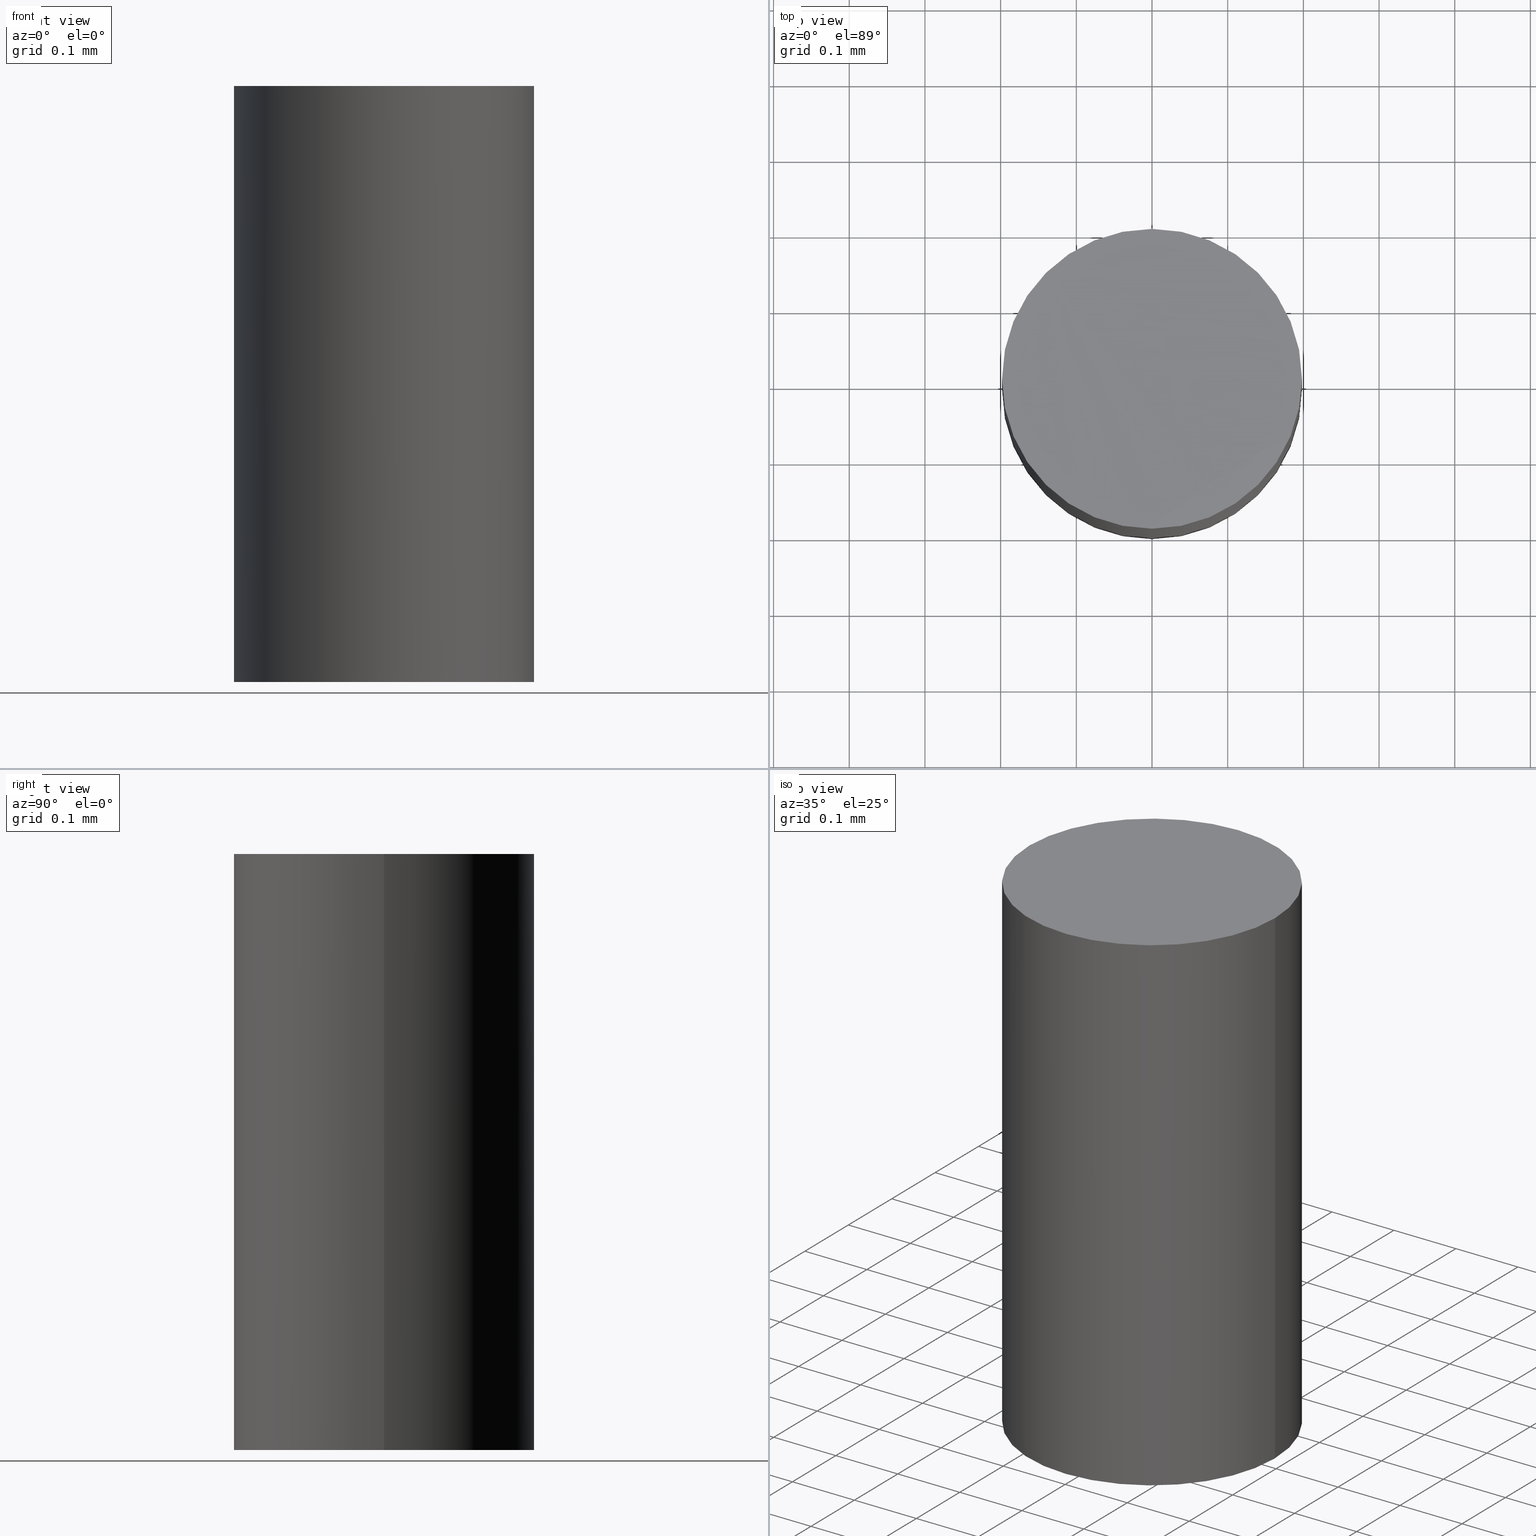
[diagram: canonical four-view strip — front | top / right | iso, engineering-drawing reading convention]
A machine part, canonical four-view strip (front | top / right | iso — engineering-drawing reading convention). The complete STEP part file that produces these views, byte-faithful:
ISO-10303-21;
HEADER;
FILE_DESCRIPTION (( 'STEP AP203' ),
    '1' );
FILE_NAME ('30101.STEP',
    '2023-03-21T20:21:28',
    ( '' ),
    ( '' ),
    'SwSTEP 2.0',
    'SolidWorks 2022',
    '' );
FILE_SCHEMA (( 'CONFIG_CONTROL_DESIGN' ));
ENDSEC;

DATA;
#1 = DIRECTION ( 'NONE',  ( -2.445468806185136597E-29, 3.491481338843145583E-15, 1.000000000000000000 ) ) ;
#2 = APPROVAL ( #14, 'UNSPECIFIED' ) ;
#3 = DIRECTION ( 'NONE',  ( 2.438088387897960049E-29, -3.491481338843145188E-15, -1.000000000000000000 ) ) ;
#4 = ORIENTED_EDGE ( 'NONE', *, *, #181, .F. ) ;
#5 = FACE_OUTER_BOUND ( 'NONE', #45, .T. ) ;
#6 = LOCAL_TIME ( 16, 21, 27.00000000000000000, #90 ) ;
#7 = PRODUCT ( '30101', '30101', '', ( #197 ) ) ;
#8 = PERSON_AND_ORGANIZATION_ROLE ( 'creator' ) ;
#9 = APPROVAL_ROLE ( '' ) ;
#10 = EDGE_CURVE ( 'NONE', #191, #163, #141, .T. ) ;
#11 = DATE_TIME_ROLE ( 'classification_date' ) ;
#12 = DIRECTION ( 'NONE',  ( 1.000000000000000000, 0.000000000000000000, 0.000000000000000000 ) ) ;
#13 = CARTESIAN_POINT ( 'NONE',  ( 0.007799999999999999642, -5.183453195646533500E-15, -1.469000000000000083 ) ) ;
#14 = APPROVAL_STATUS ( 'not_yet_approved' ) ;
#15 = PRODUCT_DEFINITION_SHAPE ( 'NONE', 'NONE',  #21 ) ;
#16 = SECURITY_CLASSIFICATION_LEVEL ( 'unclassified' ) ;
#17 = DIRECTION ( 'NONE',  ( -1.000000000000000000, 6.982962677686265922E-15, 0.000000000000000000 ) ) ;
#18 = CARTESIAN_POINT ( 'NONE',  ( 5.446710888598879516E-17, 0.007799999999994870932, -1.469000000000000083 ) ) ;
#19 = DIRECTION ( 'NONE',  ( -2.445468806185136597E-29, 3.491481338843145583E-15, 1.000000000000000000 ) ) ;
#20 = AXIS2_PLACEMENT_3D ( 'NONE', #157, #84, #140 ) ;
#21 = PRODUCT_DEFINITION ( 'UNKNOWN', '', #200, #169 ) ;
#22 = CARTESIAN_POINT ( 'NONE',  ( -0.007799999999999990101, -5.182754899378765688E-15, -1.500000000000000222 ) ) ;
#23 =( CONVERSION_BASED_UNIT ( 'INCH', #86 ) LENGTH_UNIT ( ) NAMED_UNIT ( #42 ) );
#24 = PERSON_AND_ORGANIZATION_ROLE ( 'creator' ) ;
#25 = APPROVAL_STATUS ( 'not_yet_approved' ) ;
#26 = CALENDAR_DATE ( 2023, 21, 3 ) ;
#27 = EDGE_LOOP ( 'NONE', ( #101, #139 ) ) ;
#28 = PERSON_AND_ORGANIZATION ( #79, #154 ) ;
#29 =( GEOMETRIC_REPRESENTATION_CONTEXT ( 3 ) GLOBAL_UNCERTAINTY_ASSIGNED_CONTEXT ( ( #78 ) ) GLOBAL_UNIT_ASSIGNED_CONTEXT ( ( #23, #115, #198 ) ) REPRESENTATION_CONTEXT ( 'NONE', 'WORKASPACE' ) );
#30 = APPROVAL ( #25, 'UNSPECIFIED' ) ;
#31 = ORIENTED_EDGE ( 'NONE', *, *, #34, .T. ) ;
#32 = CARTESIAN_POINT ( 'NONE',  ( 3.668203209277704895E-29, -5.237222008264718177E-15, -1.500000000000000222 ) ) ;
#33 = MANIFOLD_SOLID_BREP ( 'Body-Move/Copy2', #54 ) ;
#34 = EDGE_CURVE ( 'NONE', #65, #163, #156, .T. ) ;
#35 = APPROVAL_PERSON_ORGANIZATION ( #71, #30, #89 ) ;
#36 = DIRECTION ( 'NONE',  ( -2.445468806185136597E-29, 3.491481338843145583E-15, 1.000000000000000000 ) ) ;
#37 = EDGE_CURVE ( 'NONE', #166, #60, #51, .T. ) ;
#38 = CARTESIAN_POINT ( 'NONE',  ( 0.000000000000000000, 0.000000000000000000, 0.000000000000000000 ) ) ;
#39 = APPROVAL_DATE_TIME ( #132, #30 ) ;
#40 = APPROVAL_STATUS ( 'not_yet_approved' ) ;
#41 = VECTOR ( 'NONE', #180, 39.37007874015748143 ) ;
#42 = DIMENSIONAL_EXPONENTS ( 1.000000000000000000, 0.000000000000000000, 0.000000000000000000, 0.000000000000000000, 0.000000000000000000, 0.000000000000000000, 0.000000000000000000 ) ;
#43 = ORIENTED_EDGE ( 'NONE', *, *, #37, .F. ) ;
#44 = APPROVAL_ROLE ( '' ) ;
#45 = EDGE_LOOP ( 'NONE', ( #174, #31, #185 ) ) ;
#46 = CONICAL_SURFACE ( 'NONE', #88, 751.2258538474760599, 1.518436449235060381 ) ;
#47 = ORIENTED_EDGE ( 'NONE', *, *, #181, .T. ) ;
#48 = CC_DESIGN_APPROVAL ( #108, ( #21 ) ) ;
#49 = DIRECTION ( 'NONE',  ( -1.000000000000000000, 6.982962677686265922E-15, -4.876176775795935793E-29 ) ) ;
#50 = DIRECTION ( 'NONE',  ( -2.445468806185136597E-29, 3.491481338843145583E-15, 1.000000000000000000 ) ) ;
#51 = CIRCLE ( 'NONE', #173, 0.007799999999999999642 ) ;
#52 = EDGE_LOOP ( 'NONE', ( #4, #201, #199, #83 ) ) ;
#53 = LINE ( 'NONE', #159, #162 ) ;
#54 = CLOSED_SHELL ( 'NONE', ( #196, #124, #150, #94, #87 ) ) ;
#55 =( LENGTH_UNIT ( ) NAMED_UNIT ( * ) SI_UNIT ( $, .METRE. ) );
#56 = APPLICATION_PROTOCOL_DEFINITION ( 'international standard', 'config_control_design', 1994, #190 ) ;
#57 = AXIS2_PLACEMENT_3D ( 'NONE', #189, #50, #171 ) ;
#58 = COORDINATED_UNIVERSAL_TIME_OFFSET ( 5, 0, .BEHIND. ) ;
#59 = CC_DESIGN_PERSON_AND_ORGANIZATION_ASSIGNMENT ( #129, #116, ( #7 ) ) ;
#60 = VERTEX_POINT ( 'NONE', #62 ) ;
#61 = CIRCLE ( 'NONE', #57, 0.007799999999999999642 ) ;
#62 = CARTESIAN_POINT ( 'NONE',  ( -0.007799999999999999642, -5.127681714123361178E-15, -1.469000000000000083 ) ) ;
#63 = DIRECTION ( 'NONE',  ( 1.000000000000000000, -6.982962677686266711E-15, 4.876176775795935793E-29 ) ) ;
#64 = CARTESIAN_POINT ( 'NONE',  ( 3.667203548880087605E-29, -5.235794758154378419E-15, -1.499591219321592339 ) ) ;
#65 = VERTEX_POINT ( 'NONE', #111 ) ;
#66 = FACE_OUTER_BOUND ( 'NONE', #112, .T. ) ;
#67 = LOCAL_TIME ( 16, 21, 27.00000000000000000, #160 ) ;
#68 = DIRECTION ( 'NONE',  ( 2.445468806185136597E-29, -3.491481338843145583E-15, -1.000000000000000000 ) ) ;
#69 = ADVANCED_BREP_SHAPE_REPRESENTATION ( '30101', ( #33, #85 ), #29 ) ;
#70 = AXIS2_PLACEMENT_3D ( 'NONE', #38, #36, #195 ) ;
#71 = PERSON_AND_ORGANIZATION ( #79, #154 ) ;
#72 = CARTESIAN_POINT ( 'NONE',  ( 0.000000000000000000, 0.000000000000000000, 0.000000000000000000 ) ) ;
#73 = DATE_TIME_ROLE ( 'creation_date' ) ;
#74 = AXIS2_PLACEMENT_3D ( 'NONE', #138, #109, #63 ) ;
#75 = PERSON_AND_ORGANIZATION_ROLE ( 'classification_officer' ) ;
#76 = CC_DESIGN_PERSON_AND_ORGANIZATION_ASSIGNMENT ( #194, #148, ( #200 ) ) ;
#77 = FACE_OUTER_BOUND ( 'NONE', #52, .T. ) ;
#78 = UNCERTAINTY_MEASURE_WITH_UNIT (LENGTH_MEASURE( 1.000000000000000082E-05 ), #23, 'distance_accuracy_value', 'NONE');
#79 = PERSON ( 'UNSPECIFIED', 'UNSPECIFIED', 'UNSPECIFIED', ('UNSPECIFIED'), ('UNSPECIFIED'), ('UNSPECIFIED') ) ;
#80 = DIRECTION ( 'NONE',  ( 1.000000000000000000, -6.982962677686283277E-15, 0.000000000000000000 ) ) ;
#81 = DIRECTION ( 'NONE',  ( 1.000000000000000000, -6.982962677686283277E-15, 0.000000000000000000 ) ) ;
#82 = CC_DESIGN_DATE_AND_TIME_ASSIGNMENT ( #184, #11, ( #97 ) ) ;
#83 = ORIENTED_EDGE ( 'NONE', *, *, #121, .F. ) ;
#84 = DIRECTION ( 'NONE',  ( -2.445468806185136597E-29, 3.491481338843145583E-15, 1.000000000000000000 ) ) ;
#85 = AXIS2_PLACEMENT_3D ( 'NONE', #72, #142, #12 ) ;
#86 = LENGTH_MEASURE_WITH_UNIT ( LENGTH_MEASURE( 0.02539999999999999897 ), #55 );
#87 = ADVANCED_FACE ( 'NONE', ( #123 ), #187, .F. ) ;
#88 = AXIS2_PLACEMENT_3D ( 'NONE', #170, #68, #126 ) ;
#89 = APPROVAL_ROLE ( '' ) ;
#90 = COORDINATED_UNIVERSAL_TIME_OFFSET ( 5, 0, .BEHIND. ) ;
#91 = DATE_AND_TIME ( #26, #67 ) ;
#92 = PERSON_AND_ORGANIZATION ( #79, #154 ) ;
#93 = CC_DESIGN_SECURITY_CLASSIFICATION ( #97, ( #200 ) ) ;
#94 = ADVANCED_FACE ( 'NONE', ( #77 ), #172, .T. ) ;
#95 = CC_DESIGN_PERSON_AND_ORGANIZATION_ASSIGNMENT ( #92, #75, ( #97 ) ) ;
#96 = CARTESIAN_POINT ( 'NONE',  ( 9.994550300498783373E-28, -1.426956899881994676E-13, -40.86966995947907577 ) ) ;
#97 = SECURITY_CLASSIFICATION ( '', '', #16 ) ;
#98 = APPLICATION_PROTOCOL_DEFINITION ( 'international standard', 'config_control_design', 1994, #179 ) ;
#99 = CC_DESIGN_DATE_AND_TIME_ASSIGNMENT ( #130, #73, ( #21 ) ) ;
#100 = PERSON_AND_ORGANIZATION ( #79, #154 ) ;
#101 = ORIENTED_EDGE ( 'NONE', *, *, #37, .T. ) ;
#102 = DATE_AND_TIME ( #178, #107 ) ;
#103 = ORIENTED_EDGE ( 'NONE', *, *, #122, .T. ) ;
#104 = CIRCLE ( 'NONE', #20, 0.007799999999999999642 ) ;
#105 = ORIENTED_EDGE ( 'NONE', *, *, #122, .F. ) ;
#106 = ORIENTED_EDGE ( 'NONE', *, *, #34, .F. ) ;
#107 = LOCAL_TIME ( 16, 21, 27.00000000000000000, #58 ) ;
#108 = APPROVAL ( #40, 'UNSPECIFIED' ) ;
#109 = DIRECTION ( 'NONE',  ( -2.445468806185136597E-29, 3.491481338843145583E-15, 1.000000000000000000 ) ) ;
#110 = DIRECTION ( 'NONE',  ( 0.9986295347545735002, -7.033825938272039721E-15, -0.05233595624295018373 ) ) ;
#111 = CARTESIAN_POINT ( 'NONE',  ( 3.667203548880087605E-29, -5.235794758154378419E-15, -1.499591219321592339 ) ) ;
#112 = EDGE_LOOP ( 'NONE', ( #106, #118, #105 ) ) ;
#113 = CARTESIAN_POINT ( 'NONE',  ( 0.007799999999999990101, -5.290733892647335922E-15, -1.500000000000000222 ) ) ;
#114 = PRODUCT_RELATED_PRODUCT_CATEGORY ( 'detail', '', ( #7 ) ) ;
#115 =( NAMED_UNIT ( * ) PLANE_ANGLE_UNIT ( ) SI_UNIT ( $, .RADIAN. ) );
#116 = PERSON_AND_ORGANIZATION_ROLE ( 'design_owner' ) ;
#117 = CYLINDRICAL_SURFACE ( 'NONE', #70, 0.007799999999999999642 ) ;
#118 = ORIENTED_EDGE ( 'NONE', *, *, #151, .T. ) ;
#119 = COORDINATED_UNIVERSAL_TIME_OFFSET ( 5, 0, .BEHIND. ) ;
#120 = APPROVAL_DATE_TIME ( #91, #108 ) ;
#121 = EDGE_CURVE ( 'NONE', #60, #166, #61, .T. ) ;
#122 = EDGE_CURVE ( 'NONE', #163, #191, #104, .T. ) ;
#123 = FACE_OUTER_BOUND ( 'NONE', #27, .T. ) ;
#124 = ADVANCED_FACE ( 'NONE', ( #5 ), #131, .F. ) ;
#125 = LOCAL_TIME ( 16, 21, 27.00000000000000000, #135 ) ;
#126 = DIRECTION ( 'NONE',  ( -1.000000000000000000, 6.982962677686265922E-15, 0.000000000000000000 ) ) ;
#127 = VECTOR ( 'NONE', #193, 39.37007874015748143 ) ;
#128 = CARTESIAN_POINT ( 'NONE',  ( 0.007799999999999999642, -5.446710888595287733E-17, 3.803417885120829600E-31 ) ) ;
#129 = PERSON_AND_ORGANIZATION ( #79, #154 ) ;
#130 = DATE_AND_TIME ( #183, #6 ) ;
#131 = CONICAL_SURFACE ( 'NONE', #168, 751.2258538474760599, 1.518436449235060381 ) ;
#132 = DATE_AND_TIME ( #182, #149 ) ;
#133 = PERSON_AND_ORGANIZATION ( #79, #154 ) ;
#134 = APPROVAL_PERSON_ORGANIZATION ( #145, #2, #44 ) ;
#135 = COORDINATED_UNIVERSAL_TIME_OFFSET ( 5, 0, .BEHIND. ) ;
#136 = EDGE_LOOP ( 'NONE', ( #103, #47, #43, #147 ) ) ;
#137 = APPROVAL_PERSON_ORGANIZATION ( #133, #108, #9 ) ;
#138 = CARTESIAN_POINT ( 'NONE',  ( 0.000000000000000000, 0.000000000000000000, 0.000000000000000000 ) ) ;
#139 = ORIENTED_EDGE ( 'NONE', *, *, #121, .T. ) ;
#140 = DIRECTION ( 'NONE',  ( 1.000000000000000000, -6.982962677686283277E-15, 0.000000000000000000 ) ) ;
#141 = CIRCLE ( 'NONE', #144, 0.007799999999999999642 ) ;
#142 = DIRECTION ( 'NONE',  ( 0.000000000000000000, 0.000000000000000000, 1.000000000000000000 ) ) ;
#143 = LINE ( 'NONE', #161, #41 ) ;
#144 = AXIS2_PLACEMENT_3D ( 'NONE', #32, #19, #81 ) ;
#145 = PERSON_AND_ORGANIZATION ( #79, #154 ) ;
#146 = FACE_OUTER_BOUND ( 'NONE', #136, .T. ) ;
#147 = ORIENTED_EDGE ( 'NONE', *, *, #153, .F. ) ;
#148 = PERSON_AND_ORGANIZATION_ROLE ( 'design_supplier' ) ;
#149 = LOCAL_TIME ( 16, 21, 27.00000000000000000, #119 ) ;
#150 = ADVANCED_FACE ( 'NONE', ( #66 ), #46, .F. ) ;
#151 = EDGE_CURVE ( 'NONE', #65, #191, #53, .T. ) ;
#152 = DIRECTION ( 'NONE',  ( 2.445468806185136597E-29, -3.491481338843145583E-15, -1.000000000000000000 ) ) ;
#153 = EDGE_CURVE ( 'NONE', #163, #166, #175, .T. ) ;
#154 = ORGANIZATION ( 'UNSPECIFIED', 'UNSPECIFIED', '' ) ;
#155 = CARTESIAN_POINT ( 'NONE',  ( 3.592393676285966338E-29, -5.128986086760581011E-15, -1.469000000000000083 ) ) ;
#156 = LINE ( 'NONE', #64, #167 ) ;
#157 = CARTESIAN_POINT ( 'NONE',  ( 3.668203209277704895E-29, -5.237222008264718177E-15, -1.500000000000000222 ) ) ;
#158 = AXIS2_PLACEMENT_3D ( 'NONE', #18, #3, #49 ) ;
#159 = CARTESIAN_POINT ( 'NONE',  ( 3.667203548880087605E-29, -5.235794758154378419E-15, -1.499591219321592339 ) ) ;
#160 = COORDINATED_UNIVERSAL_TIME_OFFSET ( 5, 0, .BEHIND. ) ;
#161 = CARTESIAN_POINT ( 'NONE',  ( -0.007799999999999999642, 5.542233338928781195E-17, -3.836769370398826244E-31 ) ) ;
#162 = VECTOR ( 'NONE', #192, 39.37007874015748854 ) ;
#163 = VERTEX_POINT ( 'NONE', #113 ) ;
#164 = APPROVAL_DATE_TIME ( #102, #2 ) ;
#165 = CC_DESIGN_PERSON_AND_ORGANIZATION_ASSIGNMENT ( #28, #8, ( #200 ) ) ;
#166 = VERTEX_POINT ( 'NONE', #13 ) ;
#167 = VECTOR ( 'NONE', #110, 39.37007874015748854 ) ;
#168 = AXIS2_PLACEMENT_3D ( 'NONE', #96, #152, #17 ) ;
#169 = DESIGN_CONTEXT ( 'detailed design', #190, 'design' ) ;
#170 = CARTESIAN_POINT ( 'NONE',  ( 9.994550300498783373E-28, -1.426956899881994676E-13, -40.86966995947907577 ) ) ;
#171 = DIRECTION ( 'NONE',  ( 1.000000000000000000, -6.982962677686283277E-15, 0.000000000000000000 ) ) ;
#172 = CYLINDRICAL_SURFACE ( 'NONE', #74, 0.007799999999999999642 ) ;
#173 = AXIS2_PLACEMENT_3D ( 'NONE', #155, #1, #80 ) ;
#174 = ORIENTED_EDGE ( 'NONE', *, *, #151, .F. ) ;
#175 = LINE ( 'NONE', #128, #127 ) ;
#176 = SHAPE_DEFINITION_REPRESENTATION ( #15, #69 ) ;
#177 = CC_DESIGN_APPROVAL ( #30, ( #97 ) ) ;
#178 = CALENDAR_DATE ( 2023, 21, 3 ) ;
#179 = APPLICATION_CONTEXT ( 'configuration controlled 3d designs of mechanical parts and assemblies' ) ;
#180 = DIRECTION ( 'NONE',  ( -2.445468806185136877E-29, 3.491481338843145188E-15, 1.000000000000000000 ) ) ;
#181 = EDGE_CURVE ( 'NONE', #191, #60, #143, .T. ) ;
#182 = CALENDAR_DATE ( 2023, 21, 3 ) ;
#183 = CALENDAR_DATE ( 2023, 21, 3 ) ;
#184 = DATE_AND_TIME ( #202, #125 ) ;
#185 = ORIENTED_EDGE ( 'NONE', *, *, #10, .F. ) ;
#186 = CC_DESIGN_APPROVAL ( #2, ( #200 ) ) ;
#187 = PLANE ( 'NONE',  #158 ) ;
#188 = CC_DESIGN_PERSON_AND_ORGANIZATION_ASSIGNMENT ( #100, #24, ( #21 ) ) ;
#189 = CARTESIAN_POINT ( 'NONE',  ( 3.592393676285966338E-29, -5.128986086760581011E-15, -1.469000000000000083 ) ) ;
#190 = APPLICATION_CONTEXT ( 'configuration controlled 3d designs of mechanical parts and assemblies' ) ;
#191 = VERTEX_POINT ( 'NONE', #22 ) ;
#192 = DIRECTION ( 'NONE',  ( -0.9986295347545735002, 6.790662755453616402E-15, -0.05233595624295018373 ) ) ;
#193 = DIRECTION ( 'NONE',  ( -2.445468806185136877E-29, 3.491481338843145188E-15, 1.000000000000000000 ) ) ;
#194 = PERSON_AND_ORGANIZATION ( #79, #154 ) ;
#195 = DIRECTION ( 'NONE',  ( 1.000000000000000000, -6.982962677686266711E-15, 4.876176775795935793E-29 ) ) ;
#196 = ADVANCED_FACE ( 'NONE', ( #146 ), #117, .T. ) ;
#197 = MECHANICAL_CONTEXT ( 'NONE', #179, 'mechanical' ) ;
#198 =( NAMED_UNIT ( * ) SI_UNIT ( $, .STERADIAN. ) SOLID_ANGLE_UNIT ( ) );
#199 = ORIENTED_EDGE ( 'NONE', *, *, #153, .T. ) ;
#200 = PRODUCT_DEFINITION_FORMATION_WITH_SPECIFIED_SOURCE ( 'ANY', '', #7, .NOT_KNOWN. ) ;
#201 = ORIENTED_EDGE ( 'NONE', *, *, #10, .T. ) ;
#202 = CALENDAR_DATE ( 2023, 21, 3 ) ;
ENDSEC;
END-ISO-10303-21;
